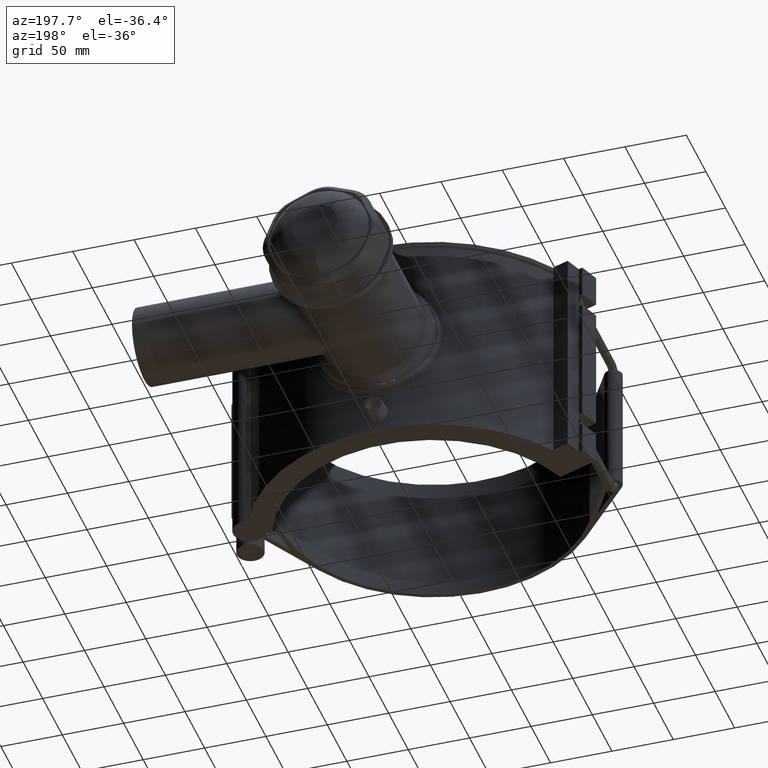
[diagram: clean part render]
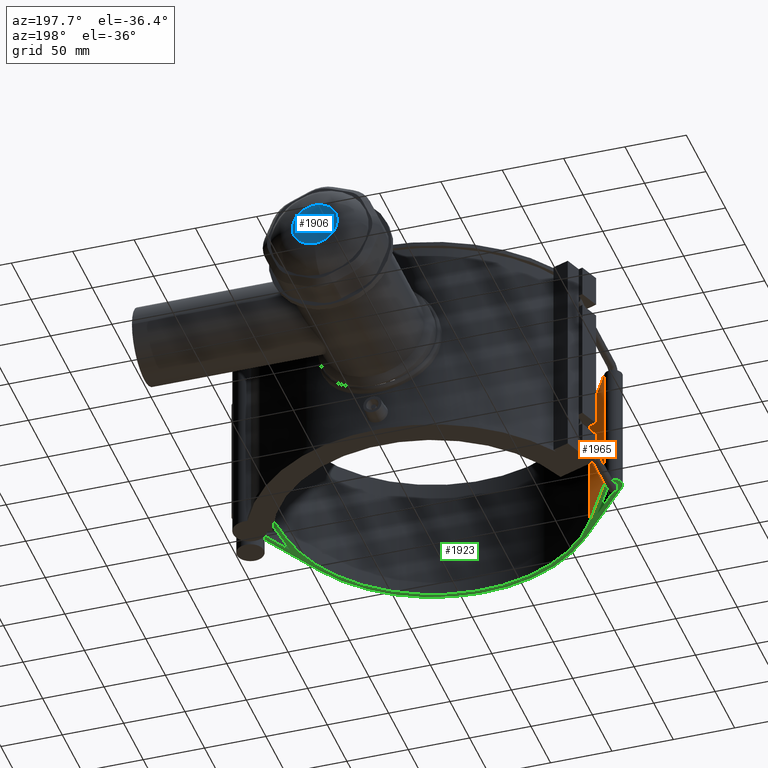
[diagram: same view with three faces highlighted in distinct colors, each labeled with its STEP entity id]
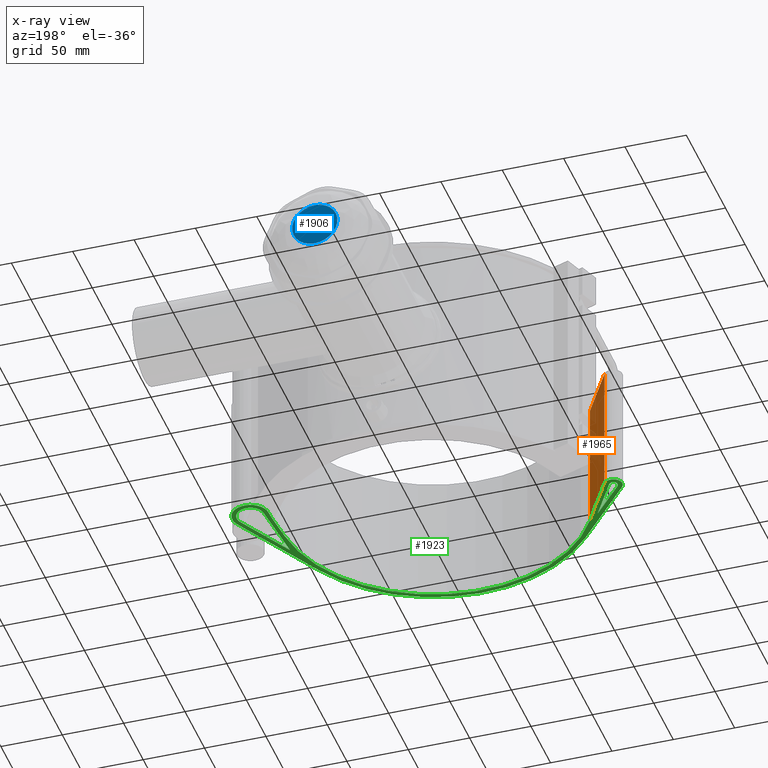
[diagram: x-ray of the same camera — body ghosted, the three highlighted faces saturated]
A machine part, auxiliary view with three faces highlighted in distinct colors.
The next image is the same camera in x-ray (body ghosted, the three faces saturated) — at least one of them is partly hidden behind the body in this view.
Their STEP definitions:

[orange] entity #1965 — the highlighted planar face has unit normal (0.8593, 0.5115, 0).
#104=LINE('',#3353,#265);
#109=LINE('',#3373,#270);
#193=LINE('',#3608,#354);
#194=LINE('',#3609,#355);
#265=VECTOR('',#2451,49.6257854616819);
#270=VECTOR('',#2468,49.6257854616819);
#354=VECTOR('',#2696,105.6);
#355=VECTOR('',#2697,105.6);
#544=FACE_OUTER_BOUND('',#686,.T.);
#686=EDGE_LOOP('',(#1707,#1708,#1709,#1710));
#894=VERTEX_POINT('',#3350);
#895=VERTEX_POINT('',#3352);
#903=VERTEX_POINT('',#3370);
#904=VERTEX_POINT('',#3372);
#1108=EDGE_CURVE('',#894,#895,#104,.T.);
#1118=EDGE_CURVE('',#903,#904,#109,.T.);
#1235=EDGE_CURVE('',#894,#904,#193,.T.);
#1236=EDGE_CURVE('',#895,#903,#194,.T.);
#1707=ORIENTED_EDGE('',*,*,#1235,.T.);
#1708=ORIENTED_EDGE('',*,*,#1118,.F.);
#1709=ORIENTED_EDGE('',*,*,#1236,.F.);
#1710=ORIENTED_EDGE('',*,*,#1108,.F.);
#1861=PLANE('',#2161);
#1965=ADVANCED_FACE('',(#544),#1861,.T.);
#2161=AXIS2_PLACEMENT_3D('',#3607,#2694,#2695);
#2451=DIRECTION('',(0.511479804338621,-0.859295298342616,0.));
#2468=DIRECTION('',(-0.511479804338621,0.859295298342616,0.));
#2694=DIRECTION('center_axis',(0.859295298342617,0.511479804338621,0.));
#2695=DIRECTION('ref_axis',(-0.51147980433862,0.859295298342617,0.));
#2696=DIRECTION('',(0.,0.,1.));
#2697=DIRECTION('',(0.,0.,1.));
#3350=CARTESIAN_POINT('',(-132.794499330919,-21.291771418545,-52.8));
#3352=CARTESIAN_POINT('',(-107.411912292827,-63.9349755423277,-52.8));
#3353=CARTESIAN_POINT('',(-107.411912292827,-63.9349755423277,-52.8));
#3370=CARTESIAN_POINT('',(-107.411912292827,-63.9349755423277,52.8));
#3372=CARTESIAN_POINT('',(-132.794499330919,-21.291771418545,52.8));
#3373=CARTESIAN_POINT('',(-107.411912292827,-63.9349755423277,52.8));
#3607=CARTESIAN_POINT('Origin',(-107.411912292827,-63.9349755423277,0.));
#3608=CARTESIAN_POINT('',(-132.794499330919,-21.291771418545,0.));
#3609=CARTESIAN_POINT('',(-107.411912292827,-63.9349755423277,0.));

[blue] entity #1906 — the highlighted planar face has unit normal (0, 1, 0).
#485=FACE_OUTER_BOUND('',#614,.T.);
#614=EDGE_LOOP('',(#1397));
#759=CIRCLE('',#2054,18.4132471177344);
#870=VERTEX_POINT('',#3245);
#1072=EDGE_CURVE('',#870,#870,#759,.T.);
#1397=ORIENTED_EDGE('',*,*,#1072,.F.);
#1820=PLANE('',#2055);
#1906=ADVANCED_FACE('',(#485),#1820,.T.);
#2054=AXIS2_PLACEMENT_3D('',#3246,#2371,#2372);
#2055=AXIS2_PLACEMENT_3D('',#3250,#2373,#2374);
#2371=DIRECTION('center_axis',(0.,-1.,-3.06161699786838E-16));
#2372=DIRECTION('ref_axis',(-6.12323399573677E-17,-2.41179193984935E-16,
1.));
#2373=DIRECTION('center_axis',(0.,1.,3.06161699786838E-16));
#2374=DIRECTION('ref_axis',(0.,0.,1.));
#3245=CARTESIAN_POINT('',(3.38245862169641E-15,302.,-18.4132471177344));
#3246=CARTESIAN_POINT('Origin',(0.,302.,5.41906208622704E-14));
#3250=CARTESIAN_POINT('Origin',(0.,302.,5.41906208622704E-14));

[green] entity #1923 — the highlighted planar face has unit normal (0, 0, 1).
#95=LINE('',#3326,#256);
#99=LINE('',#3334,#260);
#102=LINE('',#3345,#263);
#103=LINE('',#3349,#264);
#104=LINE('',#3353,#265);
#105=LINE('',#3357,#266);
#106=LINE('',#3363,#267);
#107=LINE('',#3364,#268);
#256=VECTOR('',#2430,52.9196756847128);
#260=VECTOR('',#2436,52.9196756847128);
#263=VECTOR('',#2445,87.3267515625168);
#264=VECTOR('',#2448,72.0453404647995);
#265=VECTOR('',#2451,49.6257854616819);
#266=VECTOR('',#2454,23.4220609933609);
#267=VECTOR('',#2459,39.6138549528074);
#268=VECTOR('',#2460,39.6138549528074);
#374=FACE_BOUND('',#637,.T.);
#375=FACE_BOUND('',#638,.T.);
#502=FACE_OUTER_BOUND('',#636,.T.);
#636=EDGE_LOOP('',(#1467,#1468,#1469,#1470,#1471,#1472,#1473,#1474,#1475,
#1476));
#637=EDGE_LOOP('',(#1477,#1478,#1479));
#638=EDGE_LOOP('',(#1480,#1481,#1482));
#767=CIRCLE('',#2080,14.8076923076923);
#768=CIRCLE('',#2081,14.8076923076923);
#769=CIRCLE('',#2082,128.75);
#770=CIRCLE('',#2083,7.25);
#771=CIRCLE('',#2084,125.);
#772=CIRCLE('',#2085,125.);
#773=CIRCLE('',#2086,3.49999999999997);
#774=CIRCLE('',#2087,11.0576923076923);
#882=VERTEX_POINT('',#3324);
#883=VERTEX_POINT('',#3325);
#886=VERTEX_POINT('',#3333);
#888=VERTEX_POINT('',#3339);
#889=VERTEX_POINT('',#3340);
#890=VERTEX_POINT('',#3342);
#891=VERTEX_POINT('',#3344);
#892=VERTEX_POINT('',#3346);
#893=VERTEX_POINT('',#3348);
#894=VERTEX_POINT('',#3350);
#895=VERTEX_POINT('',#3352);
#896=VERTEX_POINT('',#3354);
#897=VERTEX_POINT('',#3356);
#898=VERTEX_POINT('',#3359);
#899=VERTEX_POINT('',#3360);
#900=VERTEX_POINT('',#3362);
#1095=EDGE_CURVE('',#882,#883,#95,.T.);
#1099=EDGE_CURVE('',#883,#886,#99,.T.);
#1102=EDGE_CURVE('',#888,#889,#767,.T.);
#1103=EDGE_CURVE('',#889,#890,#768,.T.);
#1104=EDGE_CURVE('',#890,#891,#102,.T.);
#1105=EDGE_CURVE('',#891,#892,#769,.T.);
#1106=EDGE_CURVE('',#892,#893,#103,.T.);
#1107=EDGE_CURVE('',#893,#894,#770,.T.);
#1108=EDGE_CURVE('',#894,#895,#104,.T.);
#1109=EDGE_CURVE('',#895,#896,#771,.T.);
#1110=EDGE_CURVE('',#896,#897,#105,.T.);
#1111=EDGE_CURVE('',#888,#897,#772,.T.);
#1112=EDGE_CURVE('',#898,#899,#773,.T.);
#1113=EDGE_CURVE('',#899,#900,#106,.T.);
#1114=EDGE_CURVE('',#900,#898,#107,.T.);
#1115=EDGE_CURVE('',#882,#886,#774,.T.);
#1467=ORIENTED_EDGE('',*,*,#1102,.T.);
#1468=ORIENTED_EDGE('',*,*,#1103,.T.);
#1469=ORIENTED_EDGE('',*,*,#1104,.T.);
#1470=ORIENTED_EDGE('',*,*,#1105,.T.);
#1471=ORIENTED_EDGE('',*,*,#1106,.T.);
#1472=ORIENTED_EDGE('',*,*,#1107,.T.);
#1473=ORIENTED_EDGE('',*,*,#1108,.T.);
#1474=ORIENTED_EDGE('',*,*,#1109,.T.);
#1475=ORIENTED_EDGE('',*,*,#1110,.T.);
#1476=ORIENTED_EDGE('',*,*,#1111,.F.);
#1477=ORIENTED_EDGE('',*,*,#1112,.T.);
#1478=ORIENTED_EDGE('',*,*,#1113,.T.);
#1479=ORIENTED_EDGE('',*,*,#1114,.T.);
#1480=ORIENTED_EDGE('',*,*,#1095,.T.);
#1481=ORIENTED_EDGE('',*,*,#1099,.T.);
#1482=ORIENTED_EDGE('',*,*,#1115,.F.);
#1829=PLANE('',#2079);
#1923=ADVANCED_FACE('',(#502,#374,#375),#1829,.F.);
#2079=AXIS2_PLACEMENT_3D('',#3338,#2439,#2440);
#2080=AXIS2_PLACEMENT_3D('',#3341,#2441,#2442);
#2081=AXIS2_PLACEMENT_3D('',#3343,#2443,#2444);
#2082=AXIS2_PLACEMENT_3D('',#3347,#2446,#2447);
#2083=AXIS2_PLACEMENT_3D('',#3351,#2449,#2450);
#2084=AXIS2_PLACEMENT_3D('',#3355,#2452,#2453);
#2085=AXIS2_PLACEMENT_3D('',#3358,#2455,#2456);
#2086=AXIS2_PLACEMENT_3D('',#3361,#2457,#2458);
#2087=AXIS2_PLACEMENT_3D('',#3365,#2461,#2462);
#2430=DIRECTION('',(-0.0905873526607484,-0.995888513608786,0.));
#2436=DIRECTION('',(0.481783564841131,0.876290246806942,0.));
#2439=DIRECTION('center_axis',(0.,0.,1.));
#2440=DIRECTION('ref_axis',(1.,0.,0.));
#2441=DIRECTION('center_axis',(0.,0.,-1.));
#2442=DIRECTION('ref_axis',(0.333937766224138,-0.942595124265574,0.));
#2443=DIRECTION('center_axis',(0.,0.,-1.));
#2444=DIRECTION('ref_axis',(0.333937766224138,-0.942595124265574,0.));
#2445=DIRECTION('',(-0.481783564841131,-0.876290246806942,0.));
#2446=DIRECTION('center_axis',(0.,0.,-1.));
#2447=DIRECTION('ref_axis',(0.98858601250743,0.150657545030643,0.));
#2448=DIRECTION('',(-0.654222560450905,0.756302083427688,0.));
#2449=DIRECTION('center_axis',(0.,0.,-1.));
#2450=DIRECTION('ref_axis',(-1.,0.,0.));
#2451=DIRECTION('',(0.511479804338621,-0.859295298342616,0.));
#2452=DIRECTION('center_axis',(0.,0.,1.));
#2453=DIRECTION('ref_axis',(0.859295298342616,0.511479804338621,0.));
#2454=DIRECTION('',(0.090587352660749,0.995888513608786,0.));
#2455=DIRECTION('center_axis',(0.,0.,-1.));
#2456=DIRECTION('ref_axis',(0.998677892414806,-0.0514049336340487,0.));
#2457=DIRECTION('center_axis',(0.,0.,1.));
#2458=DIRECTION('ref_axis',(0.,-1.,0.));
#2459=DIRECTION('',(0.654222560450905,-0.756302083427688,0.));
#2460=DIRECTION('',(-0.511479804338621,0.859295298342616,0.));
#2461=DIRECTION('center_axis',(0.,0.,-1.));
#2462=DIRECTION('ref_axis',(1.,0.,0.));
#3324=CARTESIAN_POINT('',(130.906897846979,22.6297365660324,-52.8));
#3325=CARTESIAN_POINT('',(126.113044523036,-30.0723605922753,-52.8));
#3326=CARTESIAN_POINT('',(123.663223567475,-57.0049121944555,-52.8));
#3333=CARTESIAN_POINT('',(151.608874524653,16.300635074425,-52.8));
#3334=CARTESIAN_POINT('',(116.363818225473,-47.8047046195874,-52.8));
#3338=CARTESIAN_POINT('Origin',(12.2062893552673,-74.02203081777,-52.8));
#3339=CARTESIAN_POINT('',(127.112526086027,21.8078621826871,-52.8));
#3340=CARTESIAN_POINT('',(137.721878529248,35.8284318855429,-52.8));
#3341=CARTESIAN_POINT('Origin',(141.91912660323,21.6280494933414,-52.8));
#3342=CARTESIAN_POINT('',(154.894962950179,14.4939467062708,-52.8));
#3343=CARTESIAN_POINT('Origin',(141.91912660323,21.6280494933414,-52.8));
#3344=CARTESIAN_POINT('',(112.822369276394,-62.0296339732956,-52.8));
#3345=CARTESIAN_POINT('',(112.822369276394,-62.0296339732956,-52.8));
#3346=CARTESIAN_POINT('',(-97.3738932413148,-84.2311546580541,-52.8));
#3347=CARTESIAN_POINT('Origin',(0.,0.,-52.8));
#3348=CARTESIAN_POINT('',(-144.507580348753,-29.7431135632691,-52.8));
#3349=CARTESIAN_POINT('',(-144.507580348753,-29.7431135632691,-52.8));
#3350=CARTESIAN_POINT('',(-132.794499330919,-21.291771418545,-52.8));
#3351=CARTESIAN_POINT('Origin',(-139.024390243902,-25.,-52.8));
#3352=CARTESIAN_POINT('',(-107.411912292827,-63.9349755423277,-52.8));
#3353=CARTESIAN_POINT('',(-107.411912292827,-63.9349755423277,-52.8));
#3354=CARTESIAN_POINT('',(124.486064201098,-11.3234190825937,-52.8));
#3355=CARTESIAN_POINT('Origin',(0.,0.,-52.8));
#3356=CARTESIAN_POINT('',(126.607806700345,12.0023424257388,-52.8));
#3357=CARTESIAN_POINT('',(127.280449110332,19.3971589226953,-52.8));
#3358=CARTESIAN_POINT('Origin',(2.12174249924715,23.3257615083324,-52.8));
#3359=CARTESIAN_POINT('',(-136.016856699703,-23.2098206848148,-52.8));
#3360=CARTESIAN_POINT('',(-141.671447535899,-27.2897789615782,-52.8));
#3361=CARTESIAN_POINT('Origin',(-139.024390243902,-25.,-52.8));
#3362=CARTESIAN_POINT('',(-115.755169919343,-57.2498199949886,-52.8));
#3363=CARTESIAN_POINT('',(-97.1797382939693,-78.7236096318914,-52.8));
#3364=CARTESIAN_POINT('',(-95.331273929945,-91.562333702586,-52.8));
#3365=CARTESIAN_POINT('Origin',(141.91912660323,21.6280494933414,-52.8));